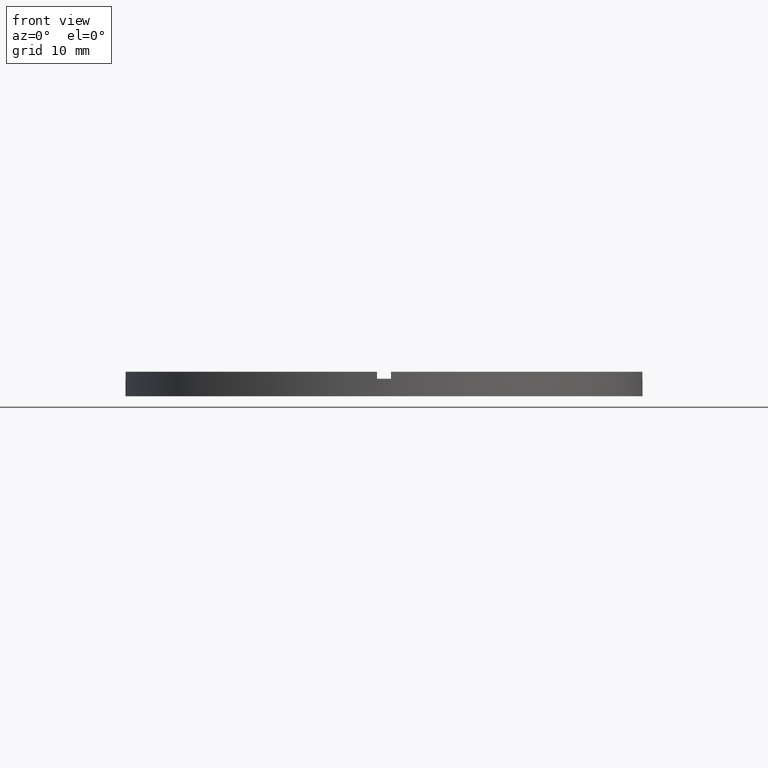
[diagram: clean part render]
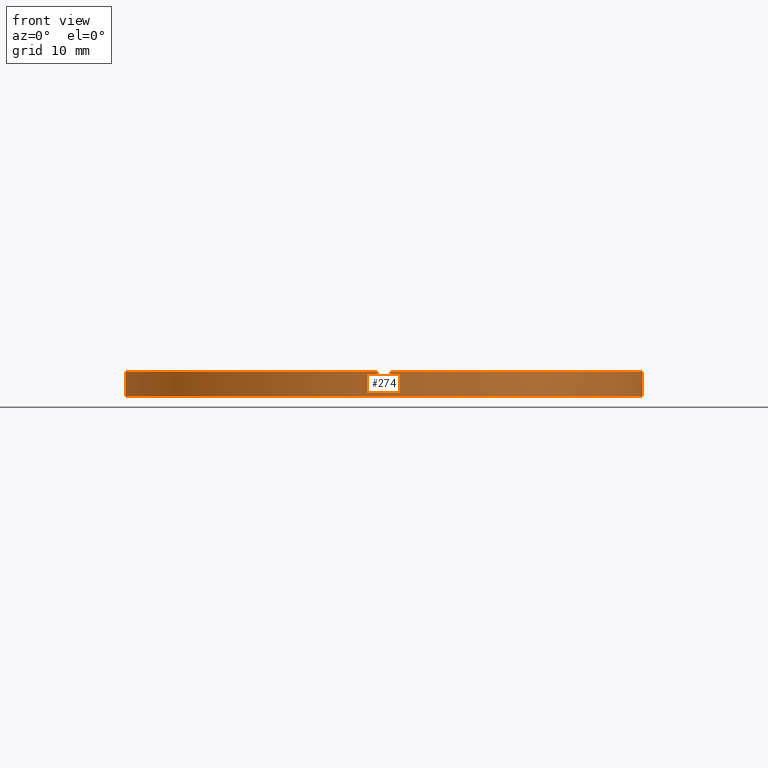
[diagram: same view with one face highlighted and labeled with its STEP entity id]
A machine part, front view. The second image highlights one B-rep face of the part: STEP entity #274.
In plain terms, the highlighted cylindrical surface (partial cylindrical patch) has radius 37 mm, axis along (-0, -0, -1).
Its self-contained STEP definition (entity closure, byte-faithful):
#13 = AXIS2_PLACEMENT_3D ( 'NONE', #434, #485, #61 ) ;
#30 = EDGE_CURVE ( 'NONE', #772, #405, #418, .T. ) ;
#36 = EDGE_CURVE ( 'NONE', #701, #185, #415, .T. ) ;
#43 = DIRECTION ( 'NONE',  ( 1.000000000000000000, 0.000000000000000000, 0.000000000000000000 ) ) ;
#46 = EDGE_CURVE ( 'NONE', #701, #452, #153, .T. ) ;
#58 = CARTESIAN_POINT ( 'NONE',  ( -36.98648401781385786, -1.000000000000027311, 3.500000000000000000 ) ) ;
#59 = VECTOR ( 'NONE', #426, 1000.000000000000000 ) ;
#60 = CARTESIAN_POINT ( 'NONE',  ( 0.000000000000000000, 0.000000000000000000, 0.000000000000000000 ) ) ;
#61 = DIRECTION ( 'NONE',  ( -1.000000000000000000, 0.000000000000000000, 0.000000000000000000 ) ) ;
#76 = LINE ( 'NONE', #86, #84 ) ;
#77 = AXIS2_PLACEMENT_3D ( 'NONE', #502, #78, #543 ) ;
#78 = DIRECTION ( 'NONE',  ( 0.000000000000000000, 0.000000000000000000, 1.000000000000000000 ) ) ;
#84 = VECTOR ( 'NONE', #173, 1000.000000000000000 ) ;
#86 = CARTESIAN_POINT ( 'NONE',  ( 0.9999999999998400169, -36.98648401781386497, 3.500000000000000000 ) ) ;
#104 = CIRCLE ( 'NONE', #257, 37.00000000000000000 ) ;
#107 = DIRECTION ( 'NONE',  ( 1.000000000000000000, 0.000000000000000000, 0.000000000000000000 ) ) ;
#129 = DIRECTION ( 'NONE',  ( -0.000000000000000000, -0.000000000000000000, -1.000000000000000000 ) ) ;
#131 = CARTESIAN_POINT ( 'NONE',  ( -1.000000000000160094, -36.98648401781385076, 2.500000000000000000 ) ) ;
#132 = DIRECTION ( 'NONE',  ( 0.000000000000000000, 0.000000000000000000, 1.000000000000000000 ) ) ;
#153 = CIRCLE ( 'NONE', #435, 37.00000000000000000 ) ;
#155 = VERTEX_POINT ( 'NONE', #284 ) ;
#168 = EDGE_CURVE ( 'NONE', #276, #465, #104, .T. ) ;
#173 = DIRECTION ( 'NONE',  ( -0.000000000000000000, -0.000000000000000000, -1.000000000000000000 ) ) ;
#175 = AXIS2_PLACEMENT_3D ( 'NONE', #197, #256, #305 ) ;
#185 = VERTEX_POINT ( 'NONE', #438 ) ;
#186 = EDGE_CURVE ( 'NONE', #258, #185, #371, .T. ) ;
#190 = DIRECTION ( 'NONE',  ( 0.000000000000000000, 0.000000000000000000, 1.000000000000000000 ) ) ;
#196 = CARTESIAN_POINT ( 'NONE',  ( 0.000000000000000000, 0.000000000000000000, 2.500000000000000000 ) ) ;
#197 = CARTESIAN_POINT ( 'NONE',  ( 0.000000000000000000, 0.000000000000000000, 2.500000000000000000 ) ) ;
#204 = DIRECTION ( 'NONE',  ( -0.000000000000000000, -0.000000000000000000, -1.000000000000000000 ) ) ;
#212 = ORIENTED_EDGE ( 'NONE', *, *, #437, .T. ) ;
#219 = ORIENTED_EDGE ( 'NONE', *, *, #765, .T. ) ;
#225 = ORIENTED_EDGE ( 'NONE', *, *, #544, .T. ) ;
#233 = CARTESIAN_POINT ( 'NONE',  ( -37.00000000000000000, 0.000000000000000000, 2.500000000000000000 ) ) ;
#240 = CARTESIAN_POINT ( 'NONE',  ( -1.000000000000160094, -36.98648401781385076, 3.500000000000000000 ) ) ;
#242 = DIRECTION ( 'NONE',  ( 0.000000000000000000, 0.000000000000000000, 1.000000000000000000 ) ) ;
#256 = DIRECTION ( 'NONE',  ( 0.000000000000000000, 0.000000000000000000, 1.000000000000000000 ) ) ;
#257 = AXIS2_PLACEMENT_3D ( 'NONE', #676, #734, #312 ) ;
#258 = VERTEX_POINT ( 'NONE', #363 ) ;
#274 = ADVANCED_FACE ( 'NONE', ( #636 ), #301, .T. ) ;
#276 = VERTEX_POINT ( 'NONE', #131 ) ;
#284 = CARTESIAN_POINT ( 'NONE',  ( 37.00000000000000000, 4.531193156845206793E-15, 0.000000000000000000 ) ) ;
#293 = CARTESIAN_POINT ( 'NONE',  ( 0.000000000000000000, 0.000000000000000000, 3.500000000000000000 ) ) ;
#295 = CARTESIAN_POINT ( 'NONE',  ( -36.98648401781385786, -1.000000000000027311, 2.500000000000000000 ) ) ;
#299 = CIRCLE ( 'NONE', #698, 37.00000000000000000 ) ;
#301 = CYLINDRICAL_SURFACE ( 'NONE', #13, 37.00000000000000000 ) ;
#304 = CIRCLE ( 'NONE', #175, 37.00000000000000000 ) ;
#305 = DIRECTION ( 'NONE',  ( 1.000000000000000000, 0.000000000000000000, 0.000000000000000000 ) ) ;
#312 = DIRECTION ( 'NONE',  ( 1.000000000000000000, 0.000000000000000000, 0.000000000000000000 ) ) ;
#315 = LINE ( 'NONE', #364, #59 ) ;
#326 = VECTOR ( 'NONE', #242, 1000.000000000000000 ) ;
#338 = CIRCLE ( 'NONE', #660, 37.00000000000000000 ) ;
#353 = DIRECTION ( 'NONE',  ( 0.000000000000000000, 0.000000000000000000, 1.000000000000000000 ) ) ;
#362 = DIRECTION ( 'NONE',  ( 0.000000000000000000, 0.000000000000000000, 1.000000000000000000 ) ) ;
#363 = CARTESIAN_POINT ( 'NONE',  ( 0.9999999999998400169, -36.98648401781386497, 3.500000000000000000 ) ) ;
#364 = CARTESIAN_POINT ( 'NONE',  ( -37.00000000000000000, 0.000000000000000000, 3.500000000000000000 ) ) ;
#368 = CARTESIAN_POINT ( 'NONE',  ( 37.00000000000000000, 4.531193156845206793E-15, 2.500000000000000000 ) ) ;
#371 = CIRCLE ( 'NONE', #77, 37.00000000000000000 ) ;
#400 = EDGE_CURVE ( 'NONE', #479, #405, #304, .T. ) ;
#405 = VERTEX_POINT ( 'NONE', #295 ) ;
#415 = LINE ( 'NONE', #612, #670 ) ;
#418 = LINE ( 'NONE', #58, #673 ) ;
#422 = CARTESIAN_POINT ( 'NONE',  ( -36.98648401781385786, -1.000000000000027311, 3.500000000000000000 ) ) ;
#426 = DIRECTION ( 'NONE',  ( -0.000000000000000000, -0.000000000000000000, -1.000000000000000000 ) ) ;
#434 = CARTESIAN_POINT ( 'NONE',  ( 0.000000000000000000, 0.000000000000000000, 3.500000000000000000 ) ) ;
#435 = AXIS2_PLACEMENT_3D ( 'NONE', #196, #132, #43 ) ;
#437 = EDGE_CURVE ( 'NONE', #466, #155, #299, .T. ) ;
#438 = CARTESIAN_POINT ( 'NONE',  ( 36.98648401781385076, -1.000000000000157652, 3.500000000000000000 ) ) ;
#451 = ORIENTED_EDGE ( 'NONE', *, *, #46, .F. ) ;
#452 = VERTEX_POINT ( 'NONE', #368 ) ;
#465 = VERTEX_POINT ( 'NONE', #650 ) ;
#466 = VERTEX_POINT ( 'NONE', #638 ) ;
#470 = CARTESIAN_POINT ( 'NONE',  ( 37.00000000000000000, 4.531193156845206793E-15, 3.500000000000000000 ) ) ;
#479 = VERTEX_POINT ( 'NONE', #233 ) ;
#485 = DIRECTION ( 'NONE',  ( -0.000000000000000000, -0.000000000000000000, -1.000000000000000000 ) ) ;
#488 = ORIENTED_EDGE ( 'NONE', *, *, #400, .F. ) ;
#500 = EDGE_CURVE ( 'NONE', #452, #155, #569, .T. ) ;
#502 = CARTESIAN_POINT ( 'NONE',  ( 0.000000000000000000, 0.000000000000000000, 3.500000000000000000 ) ) ;
#504 = ORIENTED_EDGE ( 'NONE', *, *, #517, .T. ) ;
#507 = ORIENTED_EDGE ( 'NONE', *, *, #663, .F. ) ;
#514 = EDGE_LOOP ( 'NONE', ( #653, #451, #524, #688, #225, #729, #219, #507, #754, #488, #504, #212 ) ) ;
#517 = EDGE_CURVE ( 'NONE', #479, #466, #315, .T. ) ;
#524 = ORIENTED_EDGE ( 'NONE', *, *, #36, .T. ) ;
#543 = DIRECTION ( 'NONE',  ( 1.000000000000000000, 0.000000000000000000, 0.000000000000000000 ) ) ;
#544 = EDGE_CURVE ( 'NONE', #258, #465, #76, .T. ) ;
#556 = CARTESIAN_POINT ( 'NONE',  ( 36.98648401781385076, -1.000000000000157652, 2.500000000000000000 ) ) ;
#561 = CARTESIAN_POINT ( 'NONE',  ( -1.000000000000160094, -36.98648401781385076, 3.500000000000000000 ) ) ;
#562 = VECTOR ( 'NONE', #129, 1000.000000000000000 ) ;
#569 = LINE ( 'NONE', #470, #562 ) ;
#571 = LINE ( 'NONE', #561, #326 ) ;
#595 = DIRECTION ( 'NONE',  ( 1.000000000000000000, 0.000000000000000000, 0.000000000000000000 ) ) ;
#612 = CARTESIAN_POINT ( 'NONE',  ( 36.98648401781385076, -1.000000000000157652, 3.500000000000000000 ) ) ;
#636 = FACE_OUTER_BOUND ( 'NONE', #514, .T. ) ;
#638 = CARTESIAN_POINT ( 'NONE',  ( -37.00000000000000000, 0.000000000000000000, 0.000000000000000000 ) ) ;
#650 = CARTESIAN_POINT ( 'NONE',  ( 0.9999999999998400169, -36.98648401781386497, 2.500000000000000000 ) ) ;
#653 = ORIENTED_EDGE ( 'NONE', *, *, #500, .F. ) ;
#660 = AXIS2_PLACEMENT_3D ( 'NONE', #293, #362, #595 ) ;
#663 = EDGE_CURVE ( 'NONE', #772, #724, #338, .T. ) ;
#670 = VECTOR ( 'NONE', #353, 1000.000000000000000 ) ;
#673 = VECTOR ( 'NONE', #204, 1000.000000000000000 ) ;
#676 = CARTESIAN_POINT ( 'NONE',  ( 0.000000000000000000, 0.000000000000000000, 2.500000000000000000 ) ) ;
#688 = ORIENTED_EDGE ( 'NONE', *, *, #186, .F. ) ;
#698 = AXIS2_PLACEMENT_3D ( 'NONE', #60, #190, #107 ) ;
#701 = VERTEX_POINT ( 'NONE', #556 ) ;
#724 = VERTEX_POINT ( 'NONE', #240 ) ;
#729 = ORIENTED_EDGE ( 'NONE', *, *, #168, .F. ) ;
#734 = DIRECTION ( 'NONE',  ( -0.000000000000000000, 0.000000000000000000, 1.000000000000000000 ) ) ;
#754 = ORIENTED_EDGE ( 'NONE', *, *, #30, .T. ) ;
#765 = EDGE_CURVE ( 'NONE', #276, #724, #571, .T. ) ;
#772 = VERTEX_POINT ( 'NONE', #422 ) ;